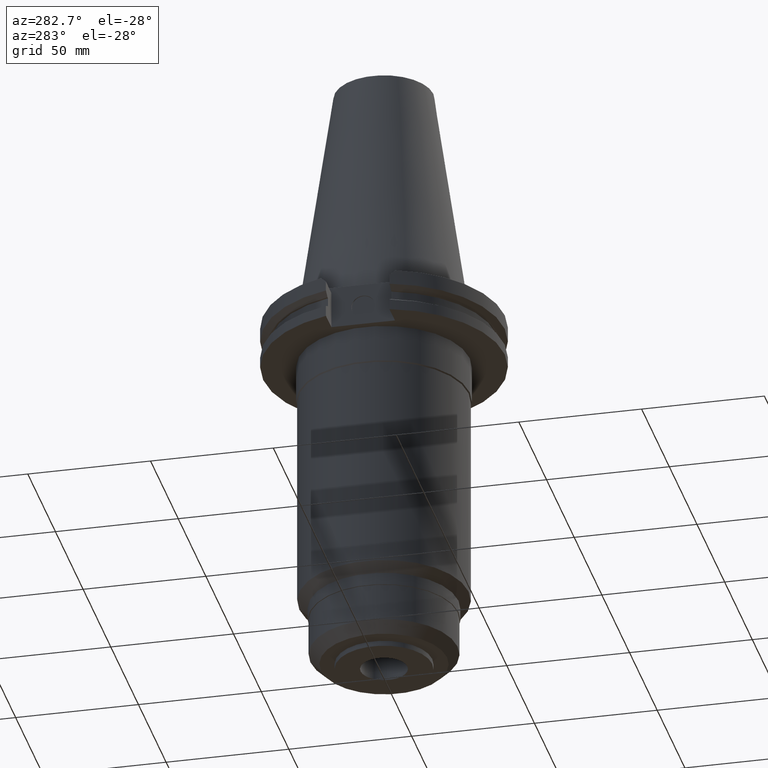
[diagram: clean part render]
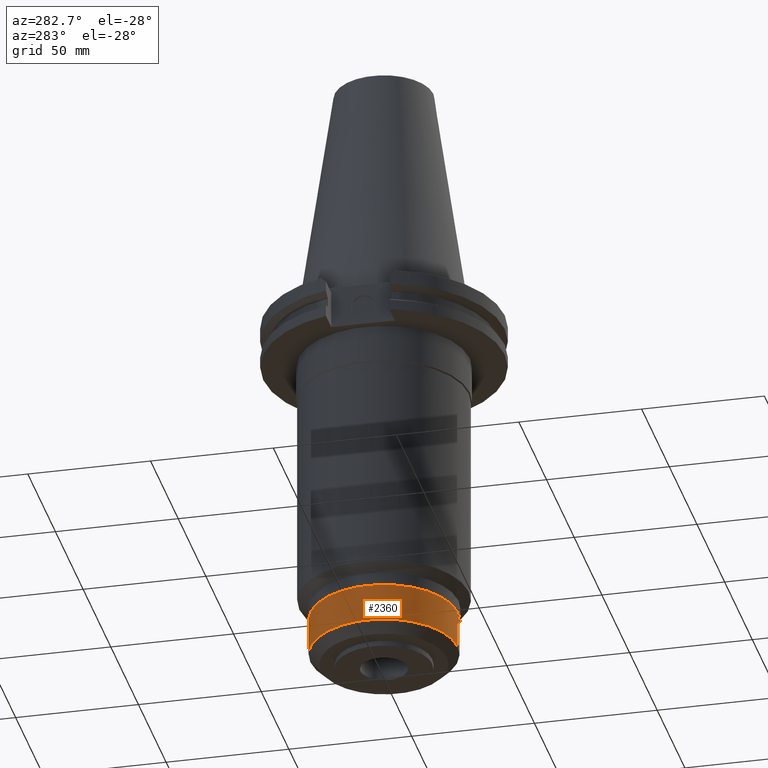
[diagram: same view with one face highlighted and labeled with its STEP entity id]
A machine part, auxiliary view. The second image highlights one B-rep face of the part: STEP entity #2360.
In plain terms, the highlighted cylindrical surface (partial cylindrical patch) has radius 30 mm, axis along (0, 0, -1).
Its self-contained STEP definition (entity closure, byte-faithful):
#998=CARTESIAN_POINT('',(0.E0,2.625887666732E-14,-1.328E2));
#999=DIRECTION('',(0.E0,0.E0,-1.E0));
#1000=DIRECTION('',(0.E0,-1.E0,0.E0));
#1001=AXIS2_PLACEMENT_3D('',#998,#999,#1000);
#1014=DIRECTION('',(0.E0,0.E0,-1.E0));
#1015=VECTOR('',#1014,1.55E1);
#1016=CARTESIAN_POINT('',(0.E0,-3.E1,-1.328E2));
#1017=LINE('',#1016,#1015);
#1021=DIRECTION('',(0.E0,0.E0,-1.E0));
#1022=VECTOR('',#1021,1.55E1);
#1023=CARTESIAN_POINT('',(0.E0,3.E1,-1.328E2));
#1024=LINE('',#1023,#1022);
#1043=CARTESIAN_POINT('',(0.E0,0.E0,-1.483E2));
#1044=DIRECTION('',(0.E0,0.E0,1.E0));
#1045=DIRECTION('',(0.E0,1.E0,0.E0));
#1046=AXIS2_PLACEMENT_3D('',#1043,#1044,#1045);
#1424=CARTESIAN_POINT('',(0.E0,3.E1,-1.483E2));
#1425=VERTEX_POINT('',#1424);
#1426=CARTESIAN_POINT('',(0.E0,-3.E1,-1.483E2));
#1427=VERTEX_POINT('',#1426);
#1428=CARTESIAN_POINT('',(0.E0,3.E1,-1.328E2));
#1429=VERTEX_POINT('',#1428);
#1430=CARTESIAN_POINT('',(0.E0,-3.E1,-1.328E2));
#1431=VERTEX_POINT('',#1430);
#2346=CARTESIAN_POINT('',(0.E0,2.625887666732E-14,1.1442E2));
#2347=DIRECTION('',(0.E0,0.E0,-1.E0));
#2348=DIRECTION('',(0.E0,-1.E0,0.E0));
#2349=AXIS2_PLACEMENT_3D('',#2346,#2347,#2348);
#2350=CYLINDRICAL_SURFACE('',#2349,3.E1);
#2352=ORIENTED_EDGE('',*,*,#2351,.F.);
#2353=ORIENTED_EDGE('',*,*,#2339,.F.);
#2355=ORIENTED_EDGE('',*,*,#2354,.T.);
#2357=ORIENTED_EDGE('',*,*,#2356,.F.);
#2358=EDGE_LOOP('',(#2352,#2353,#2355,#2357));
#2359=FACE_OUTER_BOUND('',#2358,.F.);
#1002=CIRCLE('',#1001,3.E1);
#1047=CIRCLE('',#1046,3.E1);
#2339=EDGE_CURVE('',#1431,#1429,#1002,.T.);
#2351=EDGE_CURVE('',#1429,#1425,#1024,.T.);
#2354=EDGE_CURVE('',#1431,#1427,#1017,.T.);
#2356=EDGE_CURVE('',#1425,#1427,#1047,.T.);
#2360=ADVANCED_FACE('',(#2359),#2350,.T.);